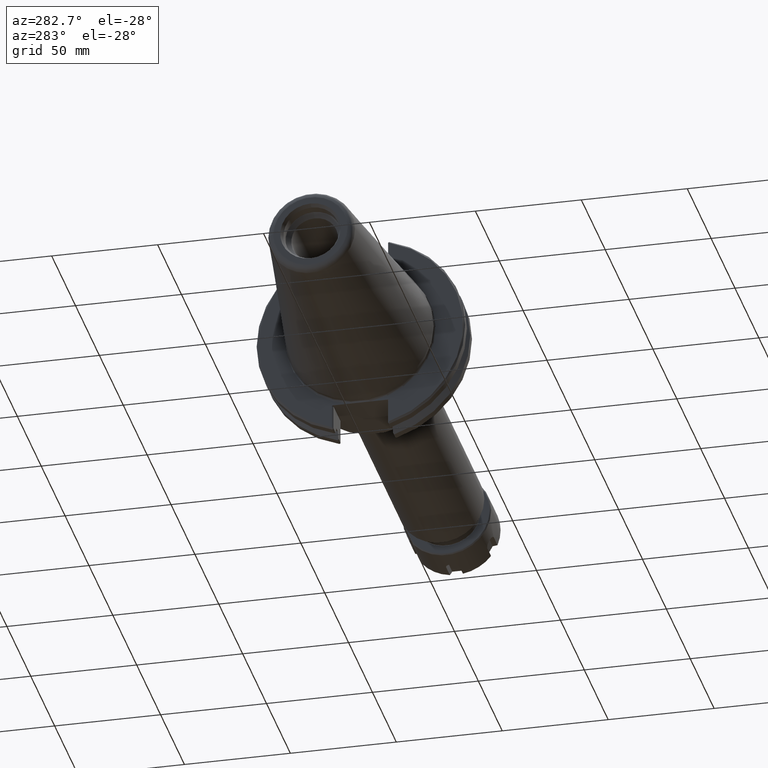
[diagram: clean part render]
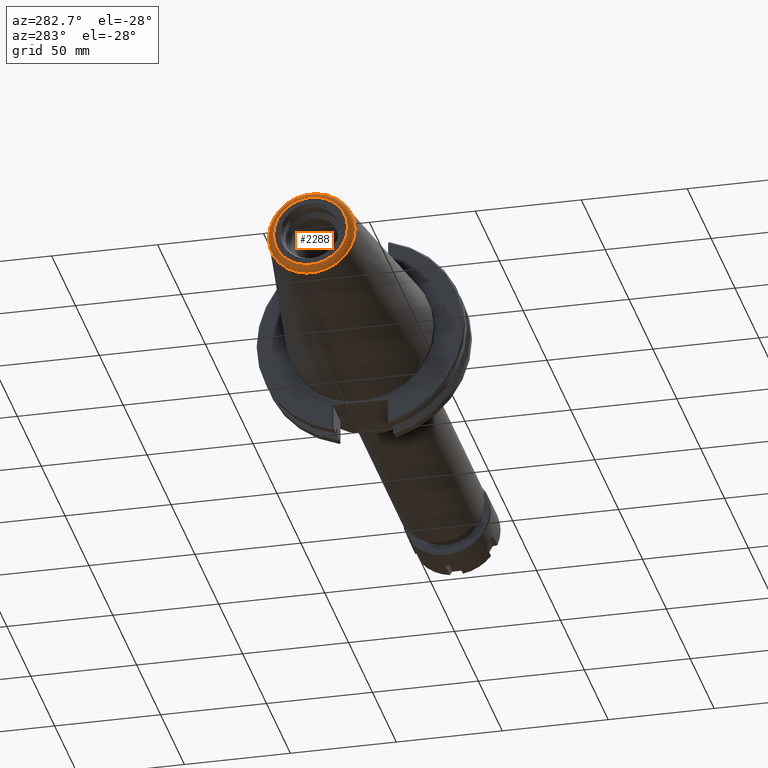
[diagram: same view with one face highlighted and labeled with its STEP entity id]
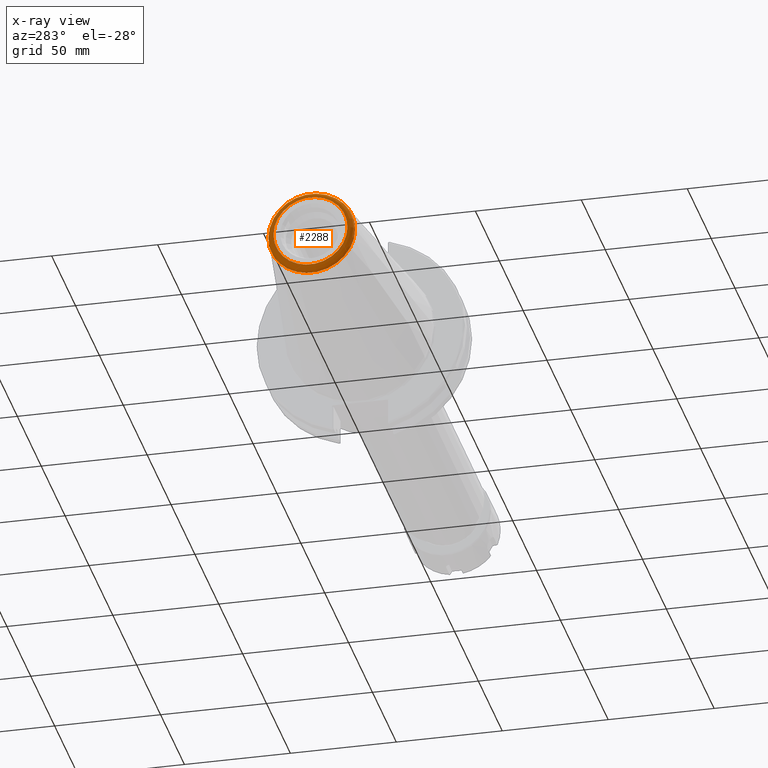
[diagram: x-ray of the same camera — body ghosted, the highlighted face saturated]
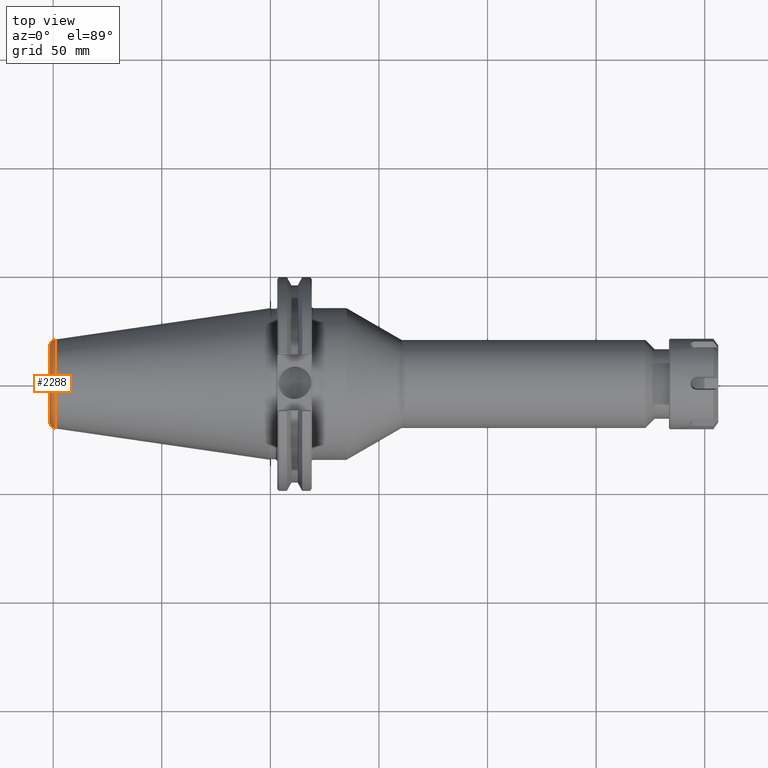
[diagram: same view with one face highlighted and labeled with its STEP entity id]
A machine part, auxiliary view. The second image highlights one B-rep face of the part: STEP entity #2288.
The next image is the same camera in x-ray: the body ghosted, the highlighted face saturated — about 0% of this face is hidden behind the body in this view.
A second angle (top view) of the same face is appended — the face is thin or edge-on in the first view.
In plain terms, the highlighted toroidal blend (fillet) surface has major radius 17.4728 mm and minor (blend) radius 3.048 mm.
Its self-contained STEP definition (entity closure, byte-faithful):
#2261=CARTESIAN_POINT('',(-3.88,0.0,0.0));
#2262=DIRECTION('',(1.0,0.0,0.0));
#2263=DIRECTION('',(0.0,0.0,-1.0));
#2264=AXIS2_PLACEMENT_3D('',#2261,#2262,#2263);
#2265=TOROIDAL_SURFACE('',#2264,0.687907409018366,0.12);
#2266=CARTESIAN_POINT('',(-4.0,0.687907409018366,0.0));
#2267=VERTEX_POINT('',#2266);
#2268=CARTESIAN_POINT('',(-4.0,0.0,0.0));
#2269=DIRECTION('',(1.0,0.0,0.0));
#2270=DIRECTION('',(0.0,-1.0,0.0));
#2271=AXIS2_PLACEMENT_3D('',#2268,#2269,#2270);
#2272=CIRCLE('',#2271,0.687907409018366);
#2273=EDGE_CURVE('',#2267,#2267,#2272,.T.);
#2274=ORIENTED_EDGE('',*,*,#2273,.T.);
#2275=EDGE_LOOP('',(#2274));
#2276=FACE_OUTER_BOUND('',#2275,.T.);
#2277=CARTESIAN_POINT('',(-3.897316526722477,0.806651410560644,-1.975661E-016));
#2278=VERTEX_POINT('',#2277);
#2279=CARTESIAN_POINT('',(-3.897316526722475,1.188900E-014,-9.878304E-017));
#2280=DIRECTION('',(-1.0,0.0,0.0));
#2281=DIRECTION('',(0.0,-1.0,0.0));
#2282=AXIS2_PLACEMENT_3D('',#2279,#2280,#2281);
#2283=CIRCLE('',#2282,0.806651410560633);
#2284=EDGE_CURVE('',#2278,#2278,#2283,.T.);
#2285=ORIENTED_EDGE('',*,*,#2284,.T.);
#2286=EDGE_LOOP('',(#2285));
#2287=FACE_BOUND('',#2286,.T.);
#2288=ADVANCED_FACE('',(#2276,#2287),#2265,.T.);